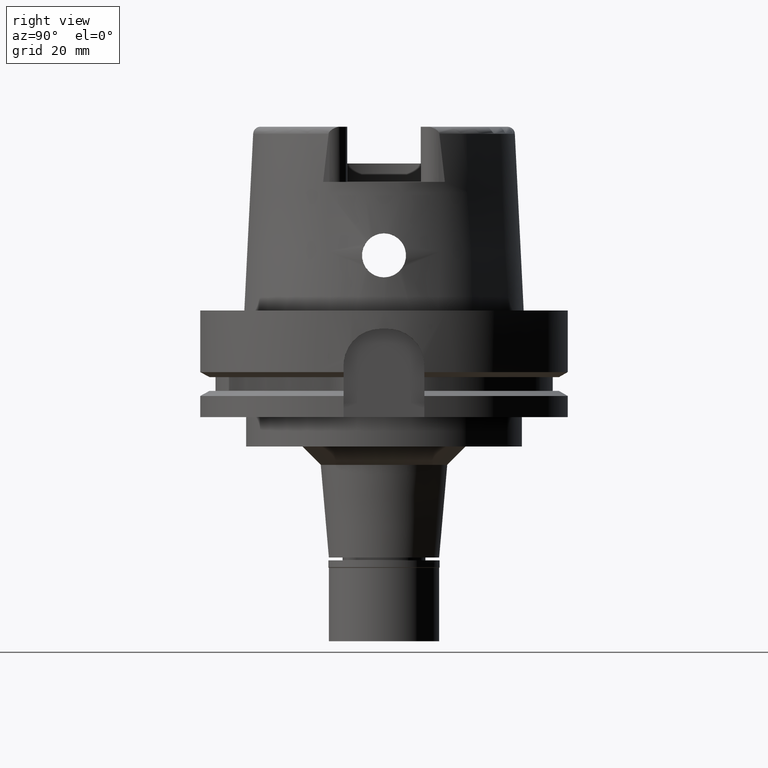
[diagram: clean part render]
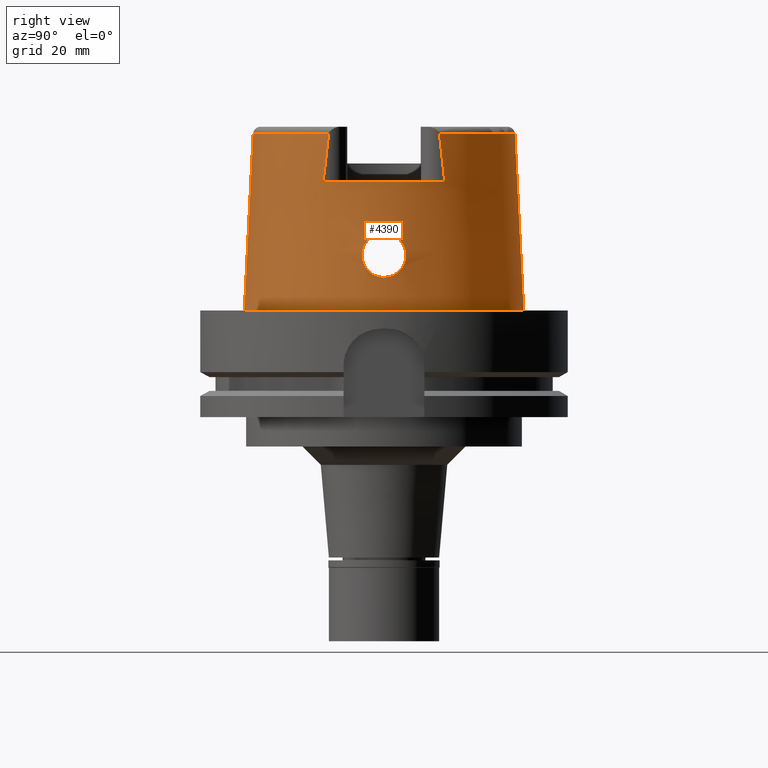
[diagram: same view with one face highlighted and labeled with its STEP entity id]
A machine part, right view. The second image highlights one B-rep face of the part: STEP entity #4390.
In plain terms, the highlighted conical surface has half-angle 2.862 deg.
Its self-contained STEP definition (entity closure, byte-faithful):
#17 = EDGE_CURVE ( 'NONE', #3467, #5183, #770, .T. ) ;
#74 = CARTESIAN_POINT ( 'NONE',  ( -0.002482252536761000127, -35.59494263424999616, 48.09987853799000135 ) ) ;
#109 = VERTEX_POINT ( 'NONE', #4951 ) ;
#128 = CARTESIAN_POINT ( 'NONE',  ( 36.94595183391186310, -0.7391700158925822439, 20.96717457367436666 ) ) ;
#134 = CIRCLE ( 'NONE', #1318, 35.59494289391000166 ) ;
#153 = CARTESIAN_POINT ( 'NONE',  ( 36.85281843686335179, -3.284972292359321422, 20.02087264414169709 ) ) ;
#184 = CARTESIAN_POINT ( 'NONE',  ( 36.90262521739957435, -2.267018408645467442, 20.55523814567088792 ) ) ;
#192 = CARTESIAN_POINT ( 'NONE',  ( 36.97232152242883529, 5.464305115176109950, 12.52092966163322529 ) ) ;
#194 = DIRECTION ( 'NONE',  ( 0.0000000000000000000, 0.0000000000000000000, -1.000000000000000000 ) ) ;
#201 = B_SPLINE_CURVE_WITH_KNOTS ( 'NONE', 3,
 ( #4466, #3988, #128, #1088, #5388, #3184, #1461, #4521, #4484, #5480, #184, #2370, #5417, #1889, #2823, #1113, #4948, #4918, #4895, #1916, #153, #2340, #2848, #1028, #4982, #2397, #612, #1059, #4116, #4551, #274, #240, #1979, #1519, #3246, #5361, #3607, #2004, #4062, #3720, #3692, #3272, #1005, #5454, #1575, #697, #1550, #212, #670, #5008, #3631, #2734, #4459, #2760, #584, #2307, #4029, #1485, #2796, #644, #4579, #2429, #4089, #4149, #3210, #1944, #3658, #5068, #2116, #5098, #5592, #5627, #302, #1175, #2908, #366, #814, #2483, #2933, #2094, #1693, #5035, #3384, #5508, #4614, #2514, #4237, #727, #4666, #3809, #781, #2547, #2457, #3862, #389, #2878, #3414, #2060, #5161, #3333, #2570 ),
 .UNSPECIFIED., .F., .F.,
 ( 4, 2, 2, 1, 1, 1, 1, 2, 2, 2, 2, 1, 1, 2, 2, 2, 1, 1, 1, 2, 2, 2, 2, 2, 1, 1, 2, 2, 2, 2, 1, 1, 2, 2, 2, 2, 2, 1, 1, 1, 2, 2, 2, 2, 1, 1, 2, 2, 2, 1, 1, 1, 2, 2, 2, 2, 2, 1, 1, 2, 2, 4 ),
 ( 0.0000000000000000000, 0.06250000000000922873, 0.09375000000001387779, 0.1093750000000161260, 0.1171875000000172640, 0.1210937500000177774, 0.1230468750000180689, 0.1240234375000182354, 0.1250000000000183742, 0.1562500000000227318, 0.1718750000000249245, 0.1796875000000261458, 0.1835937500000267564, 0.1855468750000270339, 0.1875000000000273115, 0.2187500000000298650, 0.2343750000000309475, 0.2421875000000316414, 0.2460937500000322520, 0.2480468750000325573, 0.2500000000000328071, 0.3125000000000382472, 0.3437500000000406897, 0.3593750000000421885, 0.3671875000000426881, 0.3710937500000428546, 0.3730468750000426881, 0.3750000000000425215, 0.4375000000000410783, 0.4687500000000403011, 0.4843750000000399125, 0.4921875000000397460, 0.4960937500000396905, 0.5000000000000395239, 0.5625000000000364153, 0.5937500000000348610, 0.6093750000000339728, 0.6171875000000336398, 0.6210937500000334177, 0.6230468750000334177, 0.6240234375000333067, 0.6250000000000331957, 0.6562500000000310862, 0.6718750000000301981, 0.6796875000000297540, 0.6835937500000295319, 0.6855468750000295319, 0.6875000000000294209, 0.7187500000000256462, 0.7343750000000239808, 0.7421875000000232037, 0.7460937500000228706, 0.7480468750000228706, 0.7500000000000227596, 0.8125000000000162093, 0.8437500000000128786, 0.8593750000000112133, 0.8671875000000102141, 0.8710937500000098810, 0.8730468750000095479, 0.8750000000000093259, 1.000000000000000000 ),
 .UNSPECIFIED. ) ;
#206 = VERTEX_POINT ( 'NONE', #1635 ) ;
#212 = CARTESIAN_POINT ( 'NONE',  ( 36.73168724448191824, -5.950393146608387696, 15.79360721629338649 ) ) ;
#219 = CARTESIAN_POINT ( 'NONE',  ( 36.77294558149952053, 4.568900409004103658, 18.89068984435232323 ) ) ;
#240 = CARTESIAN_POINT ( 'NONE',  ( 36.79478068695915027, -4.231766032216222939, 19.25350972621282608 ) ) ;
#254 = CARTESIAN_POINT ( 'NONE',  ( 36.76883953221059187, 5.999216256962272453, 14.90039553518130511 ) ) ;
#274 = CARTESIAN_POINT ( 'NONE',  ( 36.79529602859936688, -4.224111948566724450, 19.26110649742221881 ) ) ;
#283 = CARTESIAN_POINT ( 'NONE',  ( 36.71770359300802511, 5.805996858192322030, 16.52635834347402621 ) ) ;
#302 = CARTESIAN_POINT ( 'NONE',  ( 37.05473893697141108, -5.118665944806902957, 11.86877900640830141 ) ) ;
#309 = CARTESIAN_POINT ( 'NONE',  ( 37.22455038995909860, 4.221783973064422213, 10.73660027600568689 ) ) ;
#338 = CARTESIAN_POINT ( 'NONE',  ( 36.79008347254746525, 4.303668374943010022, 19.18074691313005431 ) ) ;
#366 = CARTESIAN_POINT ( 'NONE',  ( 37.07404861646580230, -5.029239683894315860, 11.72785301079274412 ) ) ;
#389 = CARTESIAN_POINT ( 'NONE',  ( 37.45126930723861847, -2.362987368094054297, 9.484828733038154880 ) ) ;
#418 = ORIENTED_EDGE ( 'NONE', *, *, #4190, .T. ) ;
#422 = CARTESIAN_POINT ( 'NONE',  ( 37.55000165825000380, 0.0000000000000000000, 9.000000000000000000 ) ) ;
#425 = CARTESIAN_POINT ( 'NONE',  ( 36.80173243698982333, 4.124616225045217632, 19.36192863484862769 ) ) ;
#459 = CARTESIAN_POINT ( 'NONE',  ( 36.94998175922999195, 0.7281284209468626978, 21.00000000000000355 ) ) ;
#472 = DIRECTION ( 'NONE',  ( 0.0000000000000000000, 0.0000000000000000000, -1.000000000000000000 ) ) ;
#496 = LINE ( 'NONE', #4403, #3407 ) ;
#527 = DIRECTION ( 'NONE',  ( -5.154182075159067383E-05, 0.04993927430816067631, -0.9987522546783135224 ) ) ;
#584 = CARTESIAN_POINT ( 'NONE',  ( 36.77999912643318225, -6.001745967541679327, 14.67170082633185224 ) ) ;
#592 = CARTESIAN_POINT ( 'NONE',  ( 32.25000000000000000, -16.55285457013000183, 35.00000000000000000 ) ) ;
#612 = CARTESIAN_POINT ( 'NONE',  ( 36.81051277145083844, -3.992790969924325140, 19.48045335728768634 ) ) ;
#625 = CARTESIAN_POINT ( 'NONE',  ( 37.48371761692077087, 1.943145279207807663, 9.321814730282536487 ) ) ;
#644 = CARTESIAN_POINT ( 'NONE',  ( 36.90490536283964929, -5.704689856349958177, 13.13796048355239776 ) ) ;
#652 = CARTESIAN_POINT ( 'NONE',  ( 36.71998371324039567, 5.852938050070622289, 16.33470304770429138 ) ) ;
#670 = CARTESIAN_POINT ( 'NONE',  ( 36.74144591285816119, -5.979350811121695308, 15.50656848577225944 ) ) ;
#677 = CARTESIAN_POINT ( 'NONE',  ( 37.25703270989786375, 4.015915617864761700, 10.54179321138492398 ) ) ;
#688 = CARTESIAN_POINT ( 'NONE',  ( 32.25000000000000000, 16.05167221541794476, 39.57715427223413229 ) ) ;
#697 = CARTESIAN_POINT ( 'NONE',  ( 36.71594985314963111, -5.806915620218462415, 16.55950499709629042 ) ) ;
#708 = CARTESIAN_POINT ( 'NONE',  ( 37.32346240179875707, 3.549908945438942087, 10.15801552072880298 ) ) ;
#727 = CARTESIAN_POINT ( 'NONE',  ( 37.31764686146688348, -3.614584175796406562, 10.19426430170709175 ) ) ;
#731 = EDGE_CURVE ( 'NONE', #5196, #4445, #3110, .T. ) ;
#736 = CARTESIAN_POINT ( 'NONE',  ( 36.99112113449535144, 5.390507381082755956, 12.36182977010809658 ) ) ;
#770 = CIRCLE ( 'NONE', #1492, 36.24995854370000359 ) ;
#781 = CARTESIAN_POINT ( 'NONE',  ( 37.42100472908610698, -2.697153136120586492, 9.639587895280067542 ) ) ;
#791 = CARTESIAN_POINT ( 'NONE',  ( 36.84414542226548406, 3.434102381557243344, 19.92101108756524752 ) ) ;
#814 = CARTESIAN_POINT ( 'NONE',  ( 37.07590947844902018, -5.020489027928607406, 11.71444966166873947 ) ) ;
#926 = EDGE_CURVE ( 'NONE', #5593, #4109, #3053, .T. ) ;
#940 = FACE_BOUND ( 'NONE', #4315, .T. ) ;
#1005 = CARTESIAN_POINT ( 'NONE',  ( 36.71956394724507078, -5.528880627291002270, 17.33057794899048787 ) ) ;
#1013 = CARTESIAN_POINT ( 'NONE',  ( 37.54239918755989436, 0.7523913404257193127, 9.034698934000434889 ) ) ;
#1028 = CARTESIAN_POINT ( 'NONE',  ( 36.84082155223068611, -3.496040130778921728, 19.88018334921542163 ) ) ;
#1034 = EDGE_CURVE ( 'NONE', #4143, #5593, #2975, .T. ) ;
#1059 = CARTESIAN_POINT ( 'NONE',  ( 36.80232347758131084, -4.118593259649506066, 19.36364517942684671 ) ) ;
#1074 = CARTESIAN_POINT ( 'NONE',  ( 36.72239912072802781, 5.428067512716497234, 17.57642746748080143 ) ) ;
#1088 = CARTESIAN_POINT ( 'NONE',  ( 36.93386205795747657, -1.316534565589510208, 20.85705753035457022 ) ) ;
#1095 = CARTESIAN_POINT ( 'NONE',  ( 36.77252289253279116, 5.997952465228113539, 14.83201403071305258 ) ) ;
#1113 = CARTESIAN_POINT ( 'NONE',  ( 36.87510771825505884, -2.867881465274074948, 20.27114483604010076 ) ) ;
#1120 = CARTESIAN_POINT ( 'NONE',  ( 36.71646443689203920, 5.674598772822162296, 16.95356257373774866 ) ) ;
#1155 = CARTESIAN_POINT ( 'NONE',  ( 36.76643550906574376, 5.999798760735828296, 14.94585595245023413 ) ) ;
#1175 = CARTESIAN_POINT ( 'NONE',  ( 37.06591398010261429, -5.067222588307966902, 11.78680542544483245 ) ) ;
#1185 = CARTESIAN_POINT ( 'NONE',  ( 36.74472527808273270, 6.000556766730636760, 15.37192459273636125 ) ) ;
#1247 = EDGE_CURVE ( 'NONE', #4445, #5196, #201, .T. ) ;
#1296 = CARTESIAN_POINT ( 'NONE',  ( 36.78004404610145173, 4.458637766823555282, 19.01542387144130331 ) ) ;
#1318 = AXIS2_PLACEMENT_3D ( 'NONE', #3258, #194, #4560 ) ;
#1320 = AXIS2_PLACEMENT_3D ( 'NONE', #4374, #472, #2669 ) ;
#1322 = CARTESIAN_POINT ( 'NONE',  ( 36.79138756197622939, 4.283606197383337921, 19.20130029620236201 ) ) ;
#1371 = CARTESIAN_POINT ( 'NONE',  ( 0.0000000000000000000, 0.0000000000000000000, 1.023181539494999863E-12 ) ) ;
#1385 = EDGE_CURVE ( 'NONE', #3467, #206, #5424, .T. ) ;
#1424 = DIRECTION ( 'NONE',  ( 0.0000000000000000000, 0.0000000000000000000, 1.000000000000000000 ) ) ;
#1444 = CARTESIAN_POINT ( 'NONE',  ( 37.55000165825000380, 0.0000000000000000000, 9.000000000000000000 ) ) ;
#1461 = CARTESIAN_POINT ( 'NONE',  ( 36.91484584786258694, -1.949851769265236179, 20.67599317924947044 ) ) ;
#1465 = DIRECTION ( 'NONE',  ( 0.9060280460804950309, -0.4232176505245974218, 0.0000000000000000000 ) ) ;
#1485 = CARTESIAN_POINT ( 'NONE',  ( 36.86735703302527156, -5.820103744552318048, 13.52775420441395937 ) ) ;
#1492 = AXIS2_PLACEMENT_3D ( 'NONE', #4837, #4410, #2714 ) ;
#1498 = CARTESIAN_POINT ( 'NONE',  ( 36.71882543552177935, 5.554199476465941032, 17.26956110998450455 ) ) ;
#1519 = CARTESIAN_POINT ( 'NONE',  ( 36.75637125284869455, -4.811420153777994813, 18.60590774781802992 ) ) ;
#1532 = CARTESIAN_POINT ( 'NONE',  ( 37.49298312807432865, 1.800828843873067076, 9.275766322254733964 ) ) ;
#1550 = CARTESIAN_POINT ( 'NONE',  ( 36.72665085475551905, -5.921738133295879614, 15.98544340007217457 ) ) ;
#1558 = CARTESIAN_POINT ( 'NONE',  ( 36.87073058444862284, 5.816428440409449507, 13.47513049236387950 ) ) ;
#1575 = CARTESIAN_POINT ( 'NONE',  ( 36.71469340884346622, -5.691778099645373068, 16.94033464198139782 ) ) ;
#1582 = CARTESIAN_POINT ( 'NONE',  ( 36.90893331801339627, 5.699924291287190137, 13.07790221783176321 ) ) ;
#1617 = AXIS2_PLACEMENT_3D ( 'NONE', #2715, #2374, #1465 ) ;
#1618 = CARTESIAN_POINT ( 'NONE',  ( 36.71869579664176086, 5.558939324049605446, 17.25792671445810100 ) ) ;
#1635 = CARTESIAN_POINT ( 'NONE',  ( 32.24997259589490284, 15.06456613072480089, 48.09965105425600029 ) ) ;
#1649 = CARTESIAN_POINT ( 'NONE',  ( 36.88694926103523386, 2.629338401772015832, 20.39483430294889388 ) ) ;
#1674 = CARTESIAN_POINT ( 'NONE',  ( 36.89995698041808225, 2.331361776310890033, 20.52860366815470172 ) ) ;
#1693 = CARTESIAN_POINT ( 'NONE',  ( 37.17532753459218497, -4.508539668288550573, 11.03893975903013036 ) ) ;
#1705 = VECTOR ( 'NONE', #2233, 1000.000000000000227 ) ;
#1706 = ORIENTED_EDGE ( 'NONE', *, *, #731, .F. ) ;
#1889 = CARTESIAN_POINT ( 'NONE',  ( 36.89539429813566329, -2.441969130534570986, 20.48300424888133264 ) ) ;
#1916 = CARTESIAN_POINT ( 'NONE',  ( 36.85482899864179274, -3.249161212776277008, 20.04424067662164433 ) ) ;
#1924 = CARTESIAN_POINT ( 'NONE',  ( 37.20122349343925094, 4.364507561797955404, 10.87821804991094155 ) ) ;
#1944 = CARTESIAN_POINT ( 'NONE',  ( 36.94510754998368895, -5.566000632210583277, 12.75953572707038752 ) ) ;
#1954 = CARTESIAN_POINT ( 'NONE',  ( 37.27607447952308917, 3.889039231770243354, 10.42964794209390256 ) ) ;
#1970 = CARTESIAN_POINT ( 'NONE',  ( 32.25000000000000000, 15.55558142681705291, 43.94359180979679991 ) ) ;
#1979 = CARTESIAN_POINT ( 'NONE',  ( 36.77311160273250579, -4.552431449992918822, 18.93301921136697885 ) ) ;
#1988 = CARTESIAN_POINT ( 'NONE',  ( 37.04064743989135877, 5.181378366839611616, 11.96809668647924063 ) ) ;
#2004 = CARTESIAN_POINT ( 'NONE',  ( 36.72457361472574178, -5.394144876887651208, 17.62887858202299185 ) ) ;
#2014 = CARTESIAN_POINT ( 'NONE',  ( 37.22724983565662882, 4.205196100996055897, 10.72023602898843997 ) ) ;
#2035 = CARTESIAN_POINT ( 'NONE',  ( 37.00750842134053897, 5.322696622131393163, 12.22895677776871359 ) ) ;
#2060 = CARTESIAN_POINT ( 'NONE',  ( 37.45608802568992246, -2.305118925567949173, 9.460452142839237410 ) ) ;
#2063 = CARTESIAN_POINT ( 'NONE',  ( 1.065814103639999922E-14, -35.59494289391000166, 48.09987853799000135 ) ) ;
#2071 = CARTESIAN_POINT ( 'NONE',  ( 36.89405974869954719, 2.469433553775132850, 20.46867052333215753 ) ) ;
#2094 = CARTESIAN_POINT ( 'NONE',  ( 37.15793540547748819, -4.604098740018693015, 11.15137095465014383 ) ) ;
#2116 = CARTESIAN_POINT ( 'NONE',  ( 36.98320399637957934, -5.424023032649734510, 12.42732678785914224 ) ) ;
#2152 = EDGE_CURVE ( 'NONE', #4143, #5183, #4527, .T. ) ;
#2223 = CARTESIAN_POINT ( 'NONE',  ( 36.94998175923000616, -1.503990973344999703E-13, 21.00000000000000000 ) ) ;
#2233 = DIRECTION ( 'NONE',  ( 5.154182075151068004E-05, -0.04993927430816067631, -0.9987522546783135224 ) ) ;
#2242 = CARTESIAN_POINT ( 'NONE',  ( 0.0000000000000000000, -38.00001658251999714, 6.892264536873000076E-13 ) ) ;
#2307 = CARTESIAN_POINT ( 'NONE',  ( 36.80430184142081629, -5.971408340627089473, 14.29690019068110551 ) ) ;
#2340 = CARTESIAN_POINT ( 'NONE',  ( 36.85146885201880451, -3.308901489040631194, 20.00513496382300360 ) ) ;
#2352 = CARTESIAN_POINT ( 'NONE',  ( 37.46066334728170943, 2.249209384098939779, 9.437527786392877260 ) ) ;
#2370 = CARTESIAN_POINT ( 'NONE',  ( 36.90212541220875408, -2.279200783084891047, 20.55025108536898060 ) ) ;
#2374 = DIRECTION ( 'NONE',  ( 0.0000000000000000000, 0.0000000000000000000, -1.000000000000000000 ) ) ;
#2378 = CARTESIAN_POINT ( 'NONE',  ( 36.73026440582805208, 5.269569263658048897, 17.89553517114846315 ) ) ;
#2379 = ORIENTED_EDGE ( 'NONE', *, *, #4458, .F. ) ;
#2397 = CARTESIAN_POINT ( 'NONE',  ( 36.81751913462214532, -3.881326170613528692, 19.57656297747520568 ) ) ;
#2405 = CARTESIAN_POINT ( 'NONE',  ( 37.10935510939599169, 4.862791610598587333, 11.47995344370798776 ) ) ;
#2418 = CARTESIAN_POINT ( 'NONE',  ( 32.24997259589490284, 15.06456613072480089, 48.09965105425600029 ) ) ;
#2429 = CARTESIAN_POINT ( 'NONE',  ( 36.92775725938874842, -5.627686768522623062, 12.91819594491957979 ) ) ;
#2441 = CARTESIAN_POINT ( 'NONE',  ( 36.82332416153070653, 5.928719700137168758, 14.05697326568328620 ) ) ;
#2457 = CARTESIAN_POINT ( 'NONE',  ( 37.43991446148253743, -2.493618737862726142, 9.542540207289947674 ) ) ;
#2466 = CARTESIAN_POINT ( 'NONE',  ( 37.40370911752890493, 2.883089018654879432, 9.723421859248244203 ) ) ;
#2483 = CARTESIAN_POINT ( 'NONE',  ( 37.10023069533617246, -4.905699772191021601, 11.53982764999598487 ) ) ;
#2514 = CARTESIAN_POINT ( 'NONE',  ( 37.21442155224028880, -4.283050987055336378, 10.79813396179117291 ) ) ;
#2526 = CARTESIAN_POINT ( 'NONE',  ( 36.81093120987878820, 3.978960239628246853, 19.49519252431367633 ) ) ;
#2547 = CARTESIAN_POINT ( 'NONE',  ( 37.42883382000619008, -2.615283374242899583, 9.599231529876853131 ) ) ;
#2567 = ORIENTED_EDGE ( 'NONE', *, *, #1247, .F. ) ;
#2570 = CARTESIAN_POINT ( 'NONE',  ( 37.55000165825000380, 0.0000000000000000000, 9.000000000000000000 ) ) ;
#2603 = CARTESIAN_POINT ( 'NONE',  ( 36.78369700296966727, 4.402087758600776723, 19.07765214396465225 ) ) ;
#2621 = ORIENTED_EDGE ( 'NONE', *, *, #1034, .T. ) ;
#2643 = DIRECTION ( 'NONE',  ( 0.0000000000000000000, -1.000000000000000000, 0.0000000000000000000 ) ) ;
#2669 = DIRECTION ( 'NONE',  ( 0.0000000000000000000, -1.000000000000000000, 0.0000000000000000000 ) ) ;
#2714 = DIRECTION ( 'NONE',  ( 0.8896561898442558736, 0.4566309931134779343, 0.0000000000000000000 ) ) ;
#2715 = CARTESIAN_POINT ( 'NONE',  ( 0.0000000000000000000, 0.0000000000000000000, 48.09987853799000135 ) ) ;
#2728 = CARTESIAN_POINT ( 'NONE',  ( 32.25000000000000000, 16.55285457013000183, 35.00000000000000000 ) ) ;
#2734 = CARTESIAN_POINT ( 'NONE',  ( 36.75751104510590750, -5.998737359228770494, 15.12535301117943831 ) ) ;
#2760 = CARTESIAN_POINT ( 'NONE',  ( 36.76100099030594492, -5.999808549487116061, 15.05291729981578719 ) ) ;
#2796 = CARTESIAN_POINT ( 'NONE',  ( 36.89521724368545819, -5.735598161128448780, 13.23557585766540790 ) ) ;
#2803 = CARTESIAN_POINT ( 'NONE',  ( 32.25000552016999222, -15.06439823456999960, 48.10004216541999966 ) ) ;
#2807 = CARTESIAN_POINT ( 'NONE',  ( 37.34497699361343592, 3.380870039578908859, 10.03932085630257731 ) ) ;
#2823 = CARTESIAN_POINT ( 'NONE',  ( 36.88798701918669565, -2.605897032968611970, 20.40815574656131304 ) ) ;
#2829 = CARTESIAN_POINT ( 'NONE',  ( 37.46207210588856640, 2.231625382477127495, 9.430428408463452428 ) ) ;
#2848 = CARTESIAN_POINT ( 'NONE',  ( 36.85068569540185734, -3.322716817677220824, 19.99596870345714805 ) ) ;
#2856 = CARTESIAN_POINT ( 'NONE',  ( 36.75595253448275201, 4.836969649628183099, 18.55656040825923725 ) ) ;
#2857 = ORIENTED_EDGE ( 'NONE', *, *, #926, .T. ) ;
#2878 = CARTESIAN_POINT ( 'NONE',  ( 37.45377012592806665, -2.333076482155414855, 9.472173055094554428 ) ) ;
#2889 = CARTESIAN_POINT ( 'NONE',  ( 36.71650690660621308, 5.720852019960499746, 16.81154478090436655 ) ) ;
#2908 = CARTESIAN_POINT ( 'NONE',  ( 37.07078399984771977, -5.044521116452209242, 11.75146118651734994 ) ) ;
#2917 = CARTESIAN_POINT ( 'NONE',  ( 37.51959177548962288, 1.324598000507647200, 9.144817037756896028 ) ) ;
#2933 = CARTESIAN_POINT ( 'NONE',  ( 37.12324083177284706, -4.789575400097793256, 11.38079422621659909 ) ) ;
#2942 = CARTESIAN_POINT ( 'NONE',  ( 36.88060726034698433, 2.762823111188140501, 20.32697444803977049 ) ) ;
#2975 = CIRCLE ( 'NONE', #1617, 35.59494289391000166 ) ;
#3001 = CARTESIAN_POINT ( 'NONE',  ( 36.78814030397522572, 4.333578021291882187, 19.14988351643023989 ) ) ;
#3023 = CARTESIAN_POINT ( 'NONE',  ( 36.83925407826459519, 3.515813335302661713, 19.86300079128886864 ) ) ;
#3053 = LINE ( 'NONE', #74, #1705 ) ;
#3110 = B_SPLINE_CURVE_WITH_KNOTS ( 'NONE', 3,
 ( #1444, #4903, #1013, #2917, #3256, #1532, #625, #4623, #3280, #2829, #2352, #4533, #5433, #3671, #2466, #2807, #708, #3728, #1954, #677, #5487, #4127, #4990, #2014, #5464, #309, #1924, #4071, #4184, #2405, #3640, #1988, #2035, #736, #192, #5044, #5078, #3755, #1582, #1558, #2441, #3309, #4558, #3702, #4159, #1095, #254, #1155, #5015, #1185, #3340, #652, #283, #2889, #1120, #5517, #5398, #3224, #1618, #1498, #4960, #1074, #2378, #4097, #2856, #4591, #219, #1296, #2603, #3001, #338, #1322, #4759, #425, #2526, #4297, #3875, #3023, #791, #4332, #5192, #2942, #1649, #2071, #5635, #3392, #1674, #3474, #459, #4273 ),
 .UNSPECIFIED., .F., .F.,
 ( 4, 2, 2, 1, 1, 1, 1, 2, 2, 2, 2, 2, 1, 1, 1, 2, 2, 2, 2, 2, 1, 1, 2, 2, 2, 2, 2, 1, 2, 2, 2, 2, 1, 1, 1, 1, 2, 2, 2, 2, 2, 1, 1, 2, 2, 2, 2, 2, 2, 1, 1, 2, 2, 4 ),
 ( 0.0000000000000000000, 0.06249999999998939737, 0.09374999999998410993, 0.1093749999999815009, 0.1171874999999801825, 0.1210937499999795025, 0.1230468749999792111, 0.1240234374999791417, 0.1249999999999790723, 0.1874999999999660827, 0.2187499999999596156, 0.2343749999999563405, 0.2421874999999547862, 0.2460937499999540923, 0.2480468749999537870, 0.2490234374999535094, 0.2499999999999532319, 0.2812499999999452105, 0.3124999999999371059, 0.3437499999999290567, 0.3593749999999250044, 0.3671874999999230615, 0.3710937499999220623, 0.3749999999999210631, 0.4374999999999064637, 0.4687499999998991362, 0.4843749999998955835, 0.4921874999998938072, 0.4960937499998928080, 0.4999999999998918088, 0.5624999999998793188, 0.5937499999998733236, 0.6093749999998705480, 0.6171874999998692157, 0.6210937499998682165, 0.6230468749998677724, 0.6240234374998674394, 0.6249999999998672173, 0.6874999999998815392, 0.7187499999998886446, 0.7343749999998923084, 0.7421874999998940847, 0.7460937499998949729, 0.7480468749998954170, 0.7499999999998958611, 0.7812499999999079625, 0.7968749999999140687, 0.8124999999999201750, 0.8437499999999327205, 0.8593749999999390488, 0.8671874999999421574, 0.8710937499999438227, 0.8749999999999454880, 1.000000000000000000 ),
 .UNSPECIFIED. ) ;
#3125 = AXIS2_PLACEMENT_3D ( 'NONE', #1371, #1424, #2643 ) ;
#3184 = CARTESIAN_POINT ( 'NONE',  ( 36.91975731934406468, -1.803365460691489730, 20.72347924265584851 ) ) ;
#3210 = CARTESIAN_POINT ( 'NONE',  ( 36.94375228833705194, -5.570895655610631714, 12.77173502690070528 ) ) ;
#3224 = CARTESIAN_POINT ( 'NONE',  ( 36.71850568108339985, 5.566020213393123584, 17.24046758130161905 ) ) ;
#3246 = CARTESIAN_POINT ( 'NONE',  ( 36.73766887116332214, -5.131373877811479467, 18.11561964488651455 ) ) ;
#3256 = CARTESIAN_POINT ( 'NONE',  ( 37.51008868712703048, 1.515579700677326169, 9.191182473142406550 ) ) ;
#3258 = CARTESIAN_POINT ( 'NONE',  ( 0.0000000000000000000, 0.0000000000000000000, 48.09987853799000135 ) ) ;
#3272 = CARTESIAN_POINT ( 'NONE',  ( 36.71982588909303757, -5.520530268352715098, 17.35028937013210992 ) ) ;
#3280 = CARTESIAN_POINT ( 'NONE',  ( 37.46532023179373994, 2.190557022049927305, 9.414073438490065726 ) ) ;
#3309 = CARTESIAN_POINT ( 'NONE',  ( 36.80917163346290266, 5.955774854599862778, 14.24864730772400279 ) ) ;
#3333 = CARTESIAN_POINT ( 'NONE',  ( 37.55000165825000380, -0.7498651401727928212, 9.000000000000001776 ) ) ;
#3340 = CARTESIAN_POINT ( 'NONE',  ( 36.73127106183098789, 5.964761199596291696, 15.75821369405533723 ) ) ;
#3384 = CARTESIAN_POINT ( 'NONE',  ( 37.20590108997152612, -4.333053166997388850, 10.84961351126194806 ) ) ;
#3392 = CARTESIAN_POINT ( 'NONE',  ( 36.89902188933220373, 2.353572963089174852, 20.51917877489842468 ) ) ;
#3407 = VECTOR ( 'NONE', #527, 1000.000000000000227 ) ;
#3414 = CARTESIAN_POINT ( 'NONE',  ( 37.45542352599385794, -2.313164292252257503, 9.463811097744363465 ) ) ;
#3467 = VERTEX_POINT ( 'NONE', #4804 ) ;
#3474 = CARTESIAN_POINT ( 'NONE',  ( 36.93364713757713957, 1.521781821161414916, 20.86578057070574843 ) ) ;
#3556 = CARTESIAN_POINT ( 'NONE',  ( 32.25000000000000000, -16.05145952660672037, 39.57800536519610546 ) ) ;
#3582 = CARTESIAN_POINT ( 'NONE',  ( 32.25000000000000000, -15.55533875724005455, 43.94468608700277201 ) ) ;
#3607 = CARTESIAN_POINT ( 'NONE',  ( 36.72635564851906054, -5.354201142788935108, 17.70940690658623851 ) ) ;
#3631 = CARTESIAN_POINT ( 'NONE',  ( 36.75417596897349881, -5.997107909630535971, 15.19660228730420570 ) ) ;
#3640 = CARTESIAN_POINT ( 'NONE',  ( 37.06322604540581267, 5.079570409674335707, 11.80071344519872945 ) ) ;
#3653 = EDGE_LOOP ( 'NONE', ( #4828, #2621, #2857, #4150, #2379, #418, #4640, #5634 ) ) ;
#3658 = CARTESIAN_POINT ( 'NONE',  ( 36.94592938138839600, -5.563024086793508793, 12.75215879923588069 ) ) ;
#3671 = CARTESIAN_POINT ( 'NONE',  ( 37.43511499810124121, 2.564180994411916714, 9.566381691568544454 ) ) ;
#3692 = CARTESIAN_POINT ( 'NONE',  ( 36.72023131776955296, -5.507897426416525910, 17.37988951582926589 ) ) ;
#3702 = CARTESIAN_POINT ( 'NONE',  ( 36.78457820636327114, 5.988951818646196301, 14.62448503134926625 ) ) ;
#3720 = CARTESIAN_POINT ( 'NONE',  ( 36.72126492934673792, -5.477663458184364842, 17.44918144494897660 ) ) ;
#3728 = CARTESIAN_POINT ( 'NONE',  ( 37.28828468831251541, 3.804175249548225501, 10.35888833625742755 ) ) ;
#3755 = CARTESIAN_POINT ( 'NONE',  ( 36.95653457727161140, 5.524092043937898211, 12.65796578480511769 ) ) ;
#3809 = CARTESIAN_POINT ( 'NONE',  ( 37.39619146651828885, -2.944465219496314123, 9.768868529693692793 ) ) ;
#3862 = CARTESIAN_POINT ( 'NONE',  ( 37.44528903349476678, -2.433070901901276173, 9.515155224072959328 ) ) ;
#3875 = CARTESIAN_POINT ( 'NONE',  ( 36.82971339962554680, 3.673687524268438143, 19.74486460068172988 ) ) ;
#3988 = CARTESIAN_POINT ( 'NONE',  ( 36.94998175922999195, -0.3619931450033641029, 20.99999999999999289 ) ) ;
#4029 = CARTESIAN_POINT ( 'NONE',  ( 36.85038908832171245, -5.865475467160178091, 13.72163609553622798 ) ) ;
#4062 = CARTESIAN_POINT ( 'NONE',  ( 36.72230107298202029, -5.450429075010609026, 17.50893867725919506 ) ) ;
#4071 = CARTESIAN_POINT ( 'NONE',  ( 37.17845073826322988, 4.496207113156515334, 11.02229534829846358 ) ) ;
#4089 = CARTESIAN_POINT ( 'NONE',  ( 36.93702458498776053, -5.595016624789025173, 12.83274577252010396 ) ) ;
#4097 = CARTESIAN_POINT ( 'NONE',  ( 36.74870070578118941, 4.954751517516997161, 18.38947760541721621 ) ) ;
#4109 = VERTEX_POINT ( 'NONE', #2242 ) ;
#4116 = CARTESIAN_POINT ( 'NONE',  ( 36.79822502977081911, -4.180406240564142450, 19.30409758667133957 ) ) ;
#4127 = CARTESIAN_POINT ( 'NONE',  ( 37.23569280420529282, 4.152813264591755704, 10.66922294713813990 ) ) ;
#4143 = VERTEX_POINT ( 'NONE', #5371 ) ;
#4149 = CARTESIAN_POINT ( 'NONE',  ( 36.94172409956549785, -5.578203874313118149, 12.79003545044750290 ) ) ;
#4150 = ORIENTED_EDGE ( 'NONE', *, *, #4457, .T. ) ;
#4159 = CARTESIAN_POINT ( 'NONE',  ( 36.77643822966974341, 5.995498697749371608, 14.76307340857941242 ) ) ;
#4163 = VERTEX_POINT ( 'NONE', #5437 ) ;
#4184 = CARTESIAN_POINT ( 'NONE',  ( 37.13259975929452850, 4.744958273481723054, 11.32258464631956052 ) ) ;
#4190 = EDGE_CURVE ( 'NONE', #109, #206, #134, .T. ) ;
#4237 = CARTESIAN_POINT ( 'NONE',  ( 37.27041862009579631, -3.952203244324211440, 10.46249569229684262 ) ) ;
#4273 = CARTESIAN_POINT ( 'NONE',  ( 36.94998175923000616, -1.503990973344999703E-13, 21.00000000000000000 ) ) ;
#4297 = CARTESIAN_POINT ( 'NONE',  ( 36.82498579852480702, 3.751168426676503742, 19.68385050353898436 ) ) ;
#4315 = EDGE_LOOP ( 'NONE', ( #1706, #2567 ) ) ;
#4332 = CARTESIAN_POINT ( 'NONE',  ( 36.85847807014872046, 3.192800016920192441, 20.08366651303794725 ) ) ;
#4374 = CARTESIAN_POINT ( 'NONE',  ( 0.0000000000000000000, 0.0000000000000000000, 24.04993926899999934 ) ) ;
#4390 = ADVANCED_FACE ( 'NONE', ( #4805, #940 ), #4765, .T. ) ;
#4402 = CIRCLE ( 'NONE', #3125, 38.00001658251999714 ) ;
#4403 = CARTESIAN_POINT ( 'NONE',  ( 0.002482252536764999965, 35.59494263424999616, 48.09987853799000135 ) ) ;
#4410 = DIRECTION ( 'NONE',  ( 0.0000000000000000000, 0.0000000000000000000, -1.000000000000000000 ) ) ;
#4445 = VERTEX_POINT ( 'NONE', #2223 ) ;
#4457 = EDGE_CURVE ( 'NONE', #4109, #4163, #4402, .T. ) ;
#4458 = EDGE_CURVE ( 'NONE', #109, #4163, #496, .T. ) ;
#4459 = CARTESIAN_POINT ( 'NONE',  ( 36.75978034760636604, -5.999541316909051680, 15.07789267693349622 ) ) ;
#4466 = CARTESIAN_POINT ( 'NONE',  ( 36.94998175923000616, -1.503990973344999703E-13, 21.00000000000000000 ) ) ;
#4484 = CARTESIAN_POINT ( 'NONE',  ( 36.90509374343063342, -2.206084874242977278, 20.57982035835037138 ) ) ;
#4521 = CARTESIAN_POINT ( 'NONE',  ( 36.90845463817839089, -2.120719636678368047, 20.61313918666764167 ) ) ;
#4527 = B_SPLINE_CURVE_WITH_KNOTS ( 'NONE', 3,
 ( #2803, #3582, #3556, #592 ),
 .UNSPECIFIED., .F., .F.,
 ( 4, 4 ),
 ( 0.0000000000000000000, 1.000000000000000000 ),
 .UNSPECIFIED. ) ;
#4533 = CARTESIAN_POINT ( 'NONE',  ( 37.45972046273324452, 2.260928262528280275, 9.442280740054348698 ) ) ;
#4551 = CARTESIAN_POINT ( 'NONE',  ( 36.79646773766440759, -4.206661351571345797, 19.27833502774081964 ) ) ;
#4558 = CARTESIAN_POINT ( 'NONE',  ( 36.79041726071852025, 5.982401279245106451, 14.53114908467067501 ) ) ;
#4560 = DIRECTION ( 'NONE',  ( 0.0000000000000000000, 1.000000000000000000, 0.0000000000000000000 ) ) ;
#4579 = CARTESIAN_POINT ( 'NONE',  ( 36.92003961497215414, -5.654064772357914492, 12.99146298777696096 ) ) ;
#4591 = CARTESIAN_POINT ( 'NONE',  ( 36.76848987061084983, 4.638624413975072969, 18.80716599038310122 ) ) ;
#4614 = CARTESIAN_POINT ( 'NONE',  ( 37.21319779087428969, -4.290257198698220087, 10.80549832825455780 ) ) ;
#4623 = CARTESIAN_POINT ( 'NONE',  ( 37.47166057356070468, 2.108270302244111161, 9.382203463125275533 ) ) ;
#4640 = ORIENTED_EDGE ( 'NONE', *, *, #1385, .F. ) ;
#4666 = CARTESIAN_POINT ( 'NONE',  ( 37.37788130506300632, -3.111633878395644981, 9.866013907472906297 ) ) ;
#4759 = CARTESIAN_POINT ( 'NONE',  ( 36.79214037822502803, 4.272031615639898305, 19.21306275191950164 ) ) ;
#4765 = CONICAL_SURFACE ( 'NONE', #1320, 36.79747973821000073, 0.04996004983832824653 ) ;
#4804 = CARTESIAN_POINT ( 'NONE',  ( 32.25000000000000000, 16.55285457013000183, 35.00000000000000000 ) ) ;
#4805 = FACE_OUTER_BOUND ( 'NONE', #3653, .T. ) ;
#4828 = ORIENTED_EDGE ( 'NONE', *, *, #2152, .F. ) ;
#4837 = CARTESIAN_POINT ( 'NONE',  ( 0.0000000000000000000, 0.0000000000000000000, 35.00000000000000000 ) ) ;
#4895 = CARTESIAN_POINT ( 'NONE',  ( 36.85942360103980064, -3.166203782914437603, 20.09711759147415933 ) ) ;
#4903 = CARTESIAN_POINT ( 'NONE',  ( 37.55000165824999669, 0.3720106191336116641, 9.000000000000005329 ) ) ;
#4918 = CARTESIAN_POINT ( 'NONE',  ( 36.86319604580653220, -3.096205486576677046, 20.13968662739835125 ) ) ;
#4948 = CARTESIAN_POINT ( 'NONE',  ( 36.87051988752646992, -2.957875074180396080, 20.22134496249790914 ) ) ;
#4951 = CARTESIAN_POINT ( 'NONE',  ( 0.0000000000000000000, 35.59494289391000166, 48.09987853799000135 ) ) ;
#4960 = CARTESIAN_POINT ( 'NONE',  ( 36.71890567179520559, 5.551327047692101502, 17.27657481457849542 ) ) ;
#4982 = CARTESIAN_POINT ( 'NONE',  ( 36.83151448553282847, -3.653818803095178591, 19.76320210279734013 ) ) ;
#4990 = CARTESIAN_POINT ( 'NONE',  ( 37.22979464464719968, 4.189497383252244411, 10.70482977433166205 ) ) ;
#5008 = CARTESIAN_POINT ( 'NONE',  ( 36.74687626799289575, -5.990325635875189292, 15.36322647174554845 ) ) ;
#5015 = CARTESIAN_POINT ( 'NONE',  ( 36.76532028236598393, 5.999958226454469745, 14.96732395644225910 ) ) ;
#5035 = CARTESIAN_POINT ( 'NONE',  ( 37.19569682585187564, -4.392319970927945683, 10.91199847184534377 ) ) ;
#5044 = CARTESIAN_POINT ( 'NONE',  ( 36.96433287924024569, 5.494758785069683960, 12.58996677561646571 ) ) ;
#5068 = CARTESIAN_POINT ( 'NONE',  ( 36.96368780142169896, -5.498581159888971115, 12.59307070651053806 ) ) ;
#5078 = CARTESIAN_POINT ( 'NONE',  ( 36.95902230231702390, 5.514796481353770652, 12.63617809089156907 ) ) ;
#5098 = CARTESIAN_POINT ( 'NONE',  ( 37.01592215211385906, -5.288945465628976272, 12.16508832758440128 ) ) ;
#5161 = CARTESIAN_POINT ( 'NONE',  ( 37.51901984132296519, -1.536565190643932155, 9.142562339553517603 ) ) ;
#5183 = VERTEX_POINT ( 'NONE', #5295 ) ;
#5192 = CARTESIAN_POINT ( 'NONE',  ( 36.86759352966909375, 3.024804945069305973, 20.18555187992752309 ) ) ;
#5196 = VERTEX_POINT ( 'NONE', #422 ) ;
#5295 = CARTESIAN_POINT ( 'NONE',  ( 32.25000000000000000, -16.55285457013000183, 35.00000000000000000 ) ) ;
#5361 = CARTESIAN_POINT ( 'NONE',  ( 36.73250276779157275, -5.226670069731654600, 17.95217591511235966 ) ) ;
#5371 = CARTESIAN_POINT ( 'NONE',  ( 32.25000552016999222, -15.06439823456999960, 48.10004216541999966 ) ) ;
#5388 = CARTESIAN_POINT ( 'NONE',  ( 36.92882465130984571, -1.510874205582916296, 20.81021734865521822 ) ) ;
#5398 = CARTESIAN_POINT ( 'NONE',  ( 36.71809247744513982, 5.582340109107624571, 17.19967752438693509 ) ) ;
#5417 = CARTESIAN_POINT ( 'NONE',  ( 36.90181729157739454, -2.286675038445403985, 20.54717434331573145 ) ) ;
#5424 = B_SPLINE_CURVE_WITH_KNOTS ( 'NONE', 3,
 ( #2728, #688, #1970, #2418 ),
 .UNSPECIFIED., .F., .F.,
 ( 4, 4 ),
 ( 0.0000000000000000000, 1.000000000000000000 ),
 .UNSPECIFIED. ) ;
#5433 = CARTESIAN_POINT ( 'NONE',  ( 37.45914165077934399, 2.268086114692745348, 9.445199409256584744 ) ) ;
#5437 = CARTESIAN_POINT ( 'NONE',  ( 0.0000000000000000000, 38.00001658251999714, 1.023181539494999863E-12 ) ) ;
#5454 = CARTESIAN_POINT ( 'NONE',  ( 36.71945893106602909, -5.532291037648906951, 17.32247999608792455 ) ) ;
#5464 = CARTESIAN_POINT ( 'NONE',  ( 37.22554951270229395, 4.215656574106170673, 10.73053943166159030 ) ) ;
#5480 = CARTESIAN_POINT ( 'NONE',  ( 36.90337197358038424, -2.248742656100618298, 20.56268452585009143 ) ) ;
#5487 = CARTESIAN_POINT ( 'NONE',  ( 37.24733021097495822, 4.079247984279109396, 10.59936680885913241 ) ) ;
#5508 = CARTESIAN_POINT ( 'NONE',  ( 37.21027854998492757, -4.307408064722075380, 10.82311277753104761 ) ) ;
#5517 = CARTESIAN_POINT ( 'NONE',  ( 36.71738766749381000, 5.614171172458868320, 17.11789467803148312 ) ) ;
#5592 = CARTESIAN_POINT ( 'NONE',  ( 37.02740218124153415, -5.240041861090967146, 12.07541934534237882 ) ) ;
#5593 = VERTEX_POINT ( 'NONE', #2063 ) ;
#5627 = CARTESIAN_POINT ( 'NONE',  ( 37.04548319075739471, -5.160204907845358235, 11.93812345334687208 ) ) ;
#5634 = ORIENTED_EDGE ( 'NONE', *, *, #17, .T. ) ;
#5635 = CARTESIAN_POINT ( 'NONE',  ( 36.89704527631167252, 2.400031773542722568, 20.49913516181034723 ) ) ;